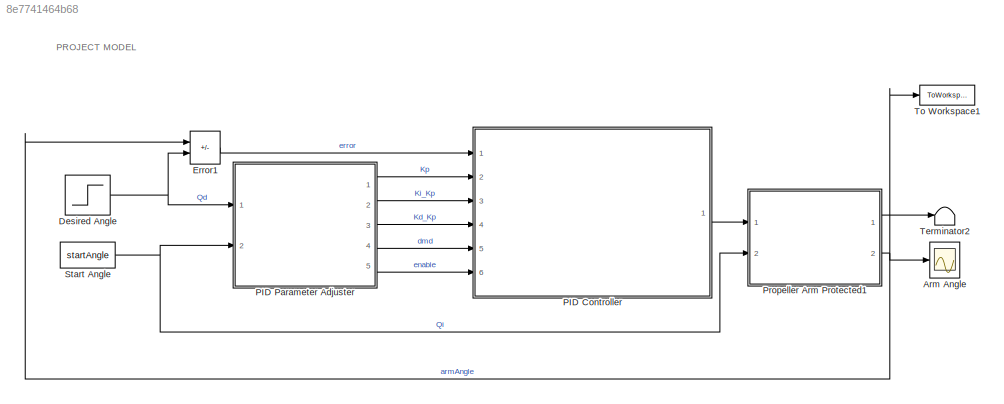
MODEL slx_8e7741464b68
KIND model
CONFIG AbsTol = auto
CONFIG EnableMultiTasking = off
CONFIG FixedStep = auto
CONFIG MaxStep = auto
CONFIG MinStep = auto
CONFIG RelTol = 1e-3
CONFIG SampleTimeConstraint = Unconstrained
CONFIG SolverName = FixedStepDiscrete
CONFIG StartTime = 0.0
CONFIG StopTime = 10
BLOCK [Scope] Arm Angle
  Floating = off
  NumInputPorts = 1
  Ports = [1]
  ScopeSpecificationString = Simulink.scopes.TimeScopeBlockCfg('CurrentConfiguration', extmgr.ConfigurationSet(extmgr.Configuration('Core','General UI',true,'FigureColor',[1 1 1],'ShowStatusbar',false),extmgr.Configuration('Core','Source UI',true),extmgr.Configuration('Sources','WiredSimulink',true),extmgr.Configuration('Visuals','Time Domain',true,'SerializedDisplays',{struct('MinYLimReal','2.48452','MaxYLimReal','73.00661',...<+2574ch>
BLOCK [Step] Desired Angle
  After = Qd_fin
  Before = Qd_init
  SampleTime = deltaT
  Time = 0
BLOCK [Sum] Error1
  IconShape = rectangular
  Inputs = -+
  Ports = [2, 1]
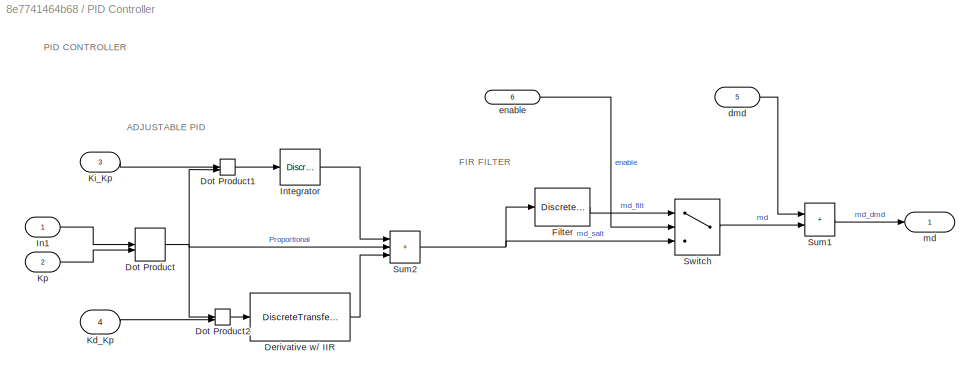
BLOCK [SubSystem] PID Controller
  Ports = [6, 1]
  RequestExecContextInheritance = off
BLOCK [DiscreteTransferFcn] PID Controller/Derivative w// IIR
  Denominator = [1 (N*Ts-1)]
  InputPortMap = u0
  Numerator = [N -N]
  Ports = [1, 1]
BLOCK [DotProduct] PID Controller/Dot Product
  OutDataTypeStr = Inherit: Inherit via internal rule
BLOCK [DotProduct] PID Controller/Dot Product1
  OutDataTypeStr = Inherit: Inherit via internal rule
BLOCK [DotProduct] PID Controller/Dot Product2
  OutDataTypeStr = Inherit: Inherit via internal rule
BLOCK [DiscreteFir] PID Controller/Filter
  InputPortMap = u0
  OutputPortMap = o0
  Ports = [1, 1]
BLOCK [Inport] PID Controller/In1
  IconDisplay = Signal name
BLOCK [DiscreteIntegrator] PID Controller/Integrator
  ICPrevOutput = DiscIntNeverNeededParam
  ICPrevScaledInput = DiscIntNeverNeededParam
  InitialConditionSetting = Auto
  Ports = [1, 1]
  SampleTime = -1
  gainval = 1
BLOCK [Inport] PID Controller/Kd_Kp
  IconDisplay = Signal name
  Port = 4
BLOCK [Inport] PID Controller/Ki_Kp
  IconDisplay = Signal name
  Port = 3
BLOCK [Inport] PID Controller/Kp
  IconDisplay = Signal name
  Port = 2
BLOCK [Sum] PID Controller/Sum1
  IconShape = rectangular
  Ports = [2, 1]
BLOCK [Sum] PID Controller/Sum2
  IconShape = rectangular
  Inputs = +++
  Ports = [3, 1]
BLOCK [Switch] PID Controller/Switch
  Criteria = u2 > Threshold
  InputSameDT = off
  SaturateOnIntegerOverflow = off
BLOCK [Inport] PID Controller/dmd
  IconDisplay = Signal name
  Port = 5
BLOCK [Inport] PID Controller/enable
  IconDisplay = Signal name
  Port = 6
BLOCK [Outport] PID Controller/md
  IconDisplay = Signal name
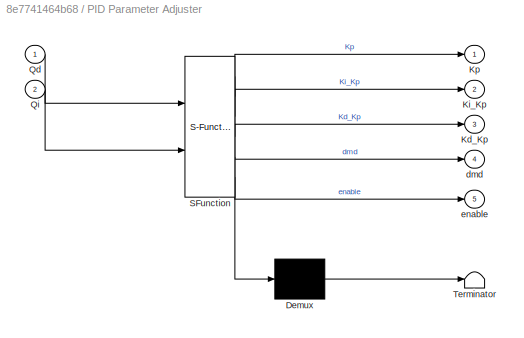
BLOCK [SubSystem] PID Parameter Adjuster
  ErrorFcn = Stateflow.Translate.translate
  PermitHierarchicalResolution = ExplicitOnly
  Ports = [2, 5]
  RequestExecContextInheritance = off
  SFBlockType = MATLAB Function
  TreatAsAtomicUnit = on
BLOCK [Demux] PID Parameter Adjuster/ Demux 
  Outputs = 1
  Ports = [1, 1]
BLOCK [S-Function] PID Parameter Adjuster/ SFunction 
  EnableBusSupport = on
  FunctionName = sf_sfun
  PortCounts = [2 6]
  Ports = [2, 6]
  SFcnIsStateOwnerBlock = off
  SFunctionDeploymentMode = off
  Tag = Stateflow S-Function 2
BLOCK [Terminator] PID Parameter Adjuster/ Terminator 
BLOCK [Outport] PID Parameter Adjuster/Kd_Kp
  Port = 3
BLOCK [Outport] PID Parameter Adjuster/Ki_Kp
  Port = 2
BLOCK [Outport] PID Parameter Adjuster/Kp
BLOCK [Inport] PID Parameter Adjuster/Qd
BLOCK [Inport] PID Parameter Adjuster/Qi
  Port = 2
BLOCK [Outport] PID Parameter Adjuster/dmd
  Port = 4
BLOCK [Outport] PID Parameter Adjuster/enable
  Port = 5
BLOCK [ModelReference] Propeller Arm Protected1
  CopyOfModelProtected = on
  ModelNameDialog = Propeller_Arm_Protected_deltaT_10ms.slxp
  ModelReferenceVersion = 3.39
  Ports = [2, 2]
BLOCK [Constant] Start Angle
  Value = startAngle
BLOCK [Terminator] Terminator2
BLOCK [ToWorkspace] To Workspace1
  FixptAsFi = on
  MaxDataPoints = inf
  Ports = [1]
  SampleTime = -1
  VariableName = armAngle1
ANNOTATION (root): PROJECT MODEL
ANNOTATION PID Controller: PID CONTROLLER
ANNOTATION PID Controller: ADJUSTABLE PID
ANNOTATION PID Controller: FIR FILTER
NET Desired Angle:1 -> Error1:2, PID Parameter Adjuster:1
LINE Error1:1 -> PID Controller:1
LINE PID Controller/Derivative w// IIR:1 -> PID Controller/Sum2:3
LINE PID Controller/Dot Product1:1 -> PID Controller/Integrator:1
LINE PID Controller/Dot Product2:1 -> PID Controller/Derivative w// IIR:1
NET PID Controller/Dot Product:1 -> PID Controller/Dot Product1:2, PID Controller/Dot Product2:1, PID Controller/Sum2:2
LINE PID Controller/Filter:1 -> PID Controller/Switch:1
LINE PID Controller/In1:1 -> PID Controller/Dot Product:1
LINE PID Controller/Integrator:1 -> PID Controller/Sum2:1
LINE PID Controller/Kd_Kp:1 -> PID Controller/Dot Product2:2
LINE PID Controller/Ki_Kp:1 -> PID Controller/Dot Product1:1
LINE PID Controller/Kp:1 -> PID Controller/Dot Product:2
LINE PID Controller/Sum1:1 -> PID Controller/md:1
NET PID Controller/Sum2:1 -> PID Controller/Filter:1, PID Controller/Switch:3
LINE PID Controller/Switch:1 -> PID Controller/Sum1:2
LINE PID Controller/dmd:1 -> PID Controller/Sum1:1
LINE PID Controller/enable:1 -> PID Controller/Switch:2
LINE PID Controller:1 -> Propeller Arm Protected1:1
LINE PID Parameter Adjuster:1 -> PID Controller:2
LINE PID Parameter Adjuster:2 -> PID Controller:3
LINE PID Parameter Adjuster:3 -> PID Controller:4
LINE PID Parameter Adjuster:4 -> PID Controller:5
LINE PID Parameter Adjuster:5 -> PID Controller:6
LINE Propeller Arm Protected1:1 -> Terminator2:1
NET Propeller Arm Protected1:2 -> Arm Angle:1, Error1:1, To Workspace1:1
NET Start Angle:1 -> PID Parameter Adjuster:2, Propeller Arm Protected1:2
note: NET lines group one-source signal fan-out (src -> all destinations, sorted); 1:1 wires keep LINE
CHART PID Parameter Adjuster states=1 transitions=1
  STATE_LABEL 'eML_blk_kernel()'
  STATE_LABEL 'SCRIPT:\nfunction [Kp, Ki_Kp, Kd_Kp, dmd, enable] = adaptiveCnt(Qd,Qi)\n    % GENERAL CONTROLLER PARAMETERS\n    Kp = 2;\n    Kd_Kp = 0.2;\n    Ki_Kp = 1.5;\n    dmd = 0;    \n    enable = 1; % -enables overall filter for final controller output before feeding the system\n    \n    if(Qi==0)               % // All cases where Start Angle (Qi) is 0.\n        if Qd >= Qi             % // For Positive Desired ...<+3608ch>'
CHART  states=0 transitions=0
